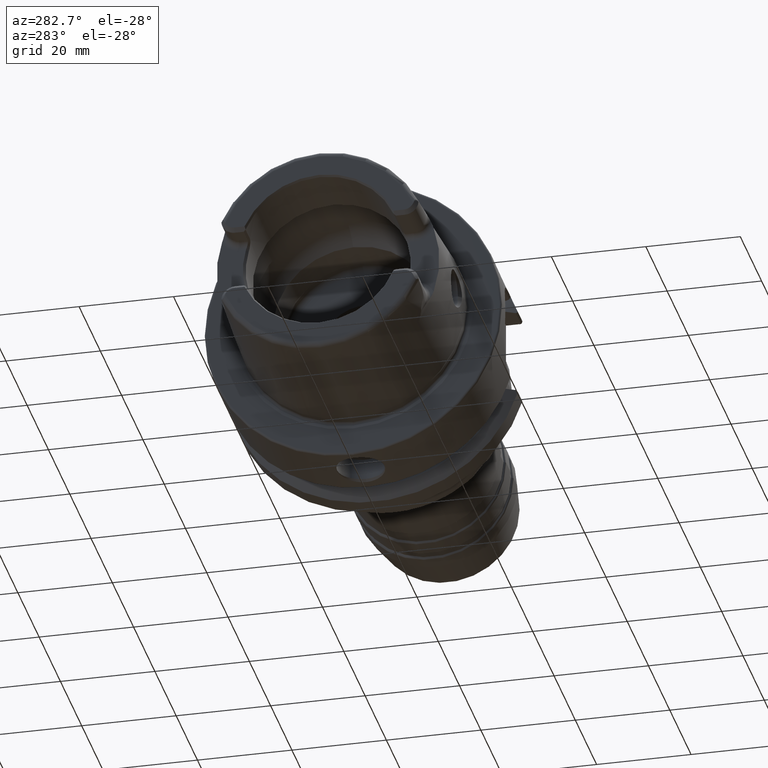
[diagram: clean part render]
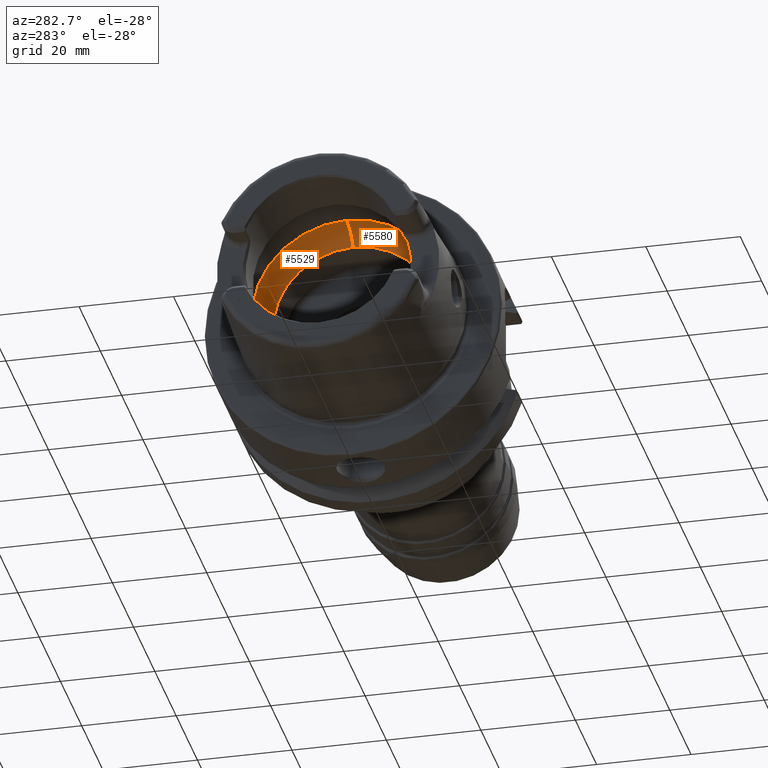
[diagram: same view with one multi-face feature highlighted, each face labeled with its STEP entity id]
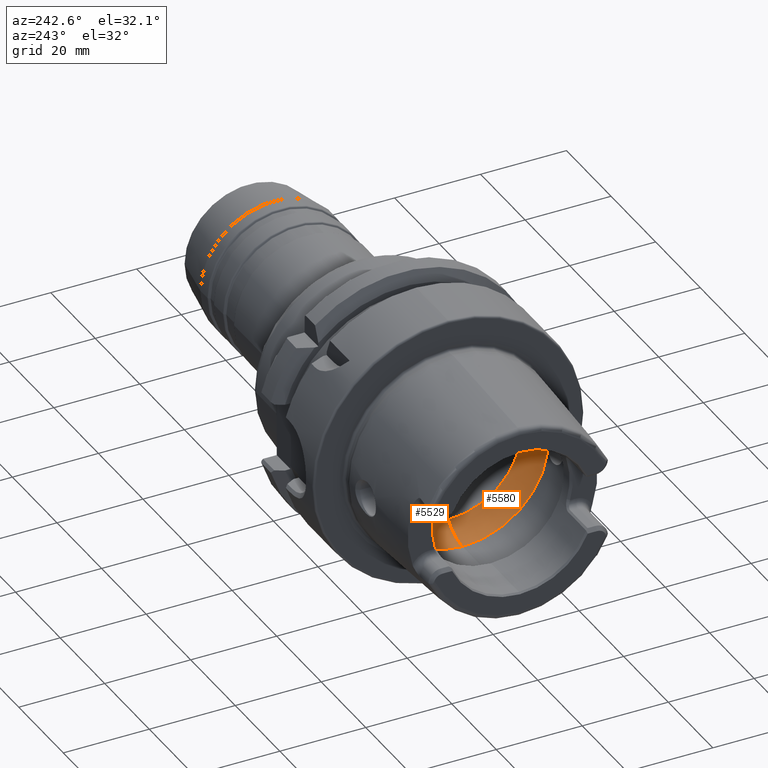
[diagram: same view with one multi-face feature highlighted, each face labeled with its STEP entity id]
A machine part, auxiliary view. The highlighted faces form ONE feature: a constant-radius fillet chain: 2 tangent blend faces with common blend radius 8.2014 mm. The faces share edges in the B-rep.
A second angle (auxiliary view) of the same feature is appended — it is thin or edge-on in the first view.
Their STEP definitions:
[1] entity #5580 (Torus):
#194=CARTESIAN_POINT('',(9.100685570619E-2,0.E0,0.E0));
#195=DIRECTION('',(1.E0,0.E0,0.E0));
#196=DIRECTION('',(0.E0,0.E0,1.E0));
#197=AXIS2_PLACEMENT_3D('',#194,#195,#196);
#1860=CARTESIAN_POINT('',(-6.25E0,-1.983683432405E1,-2.549509756796E0));
#1862=CARTESIAN_POINT('',(-6.25E0,-1.983683432405E1,2.549509756796E0));
#1878=CARTESIAN_POINT('',(-6.25E0,0.E0,0.E0));
#1879=DIRECTION('',(1.E0,0.E0,0.E0));
#1880=DIRECTION('',(0.E0,0.E0,1.E0));
#1881=AXIS2_PLACEMENT_3D('',#1878,#1879,#1880);
#1891=CARTESIAN_POINT('',(-6.25E0,0.E0,0.E0));
#1892=DIRECTION('',(1.E0,0.E0,0.E0));
#1893=DIRECTION('',(0.E0,-9.918417211620E-1,-1.274754884772E-1));
#1894=AXIS2_PLACEMENT_3D('',#1891,#1892,#1893);
#1896=CARTESIAN_POINT('',(-6.25E0,-1.983683432405E1,-2.549509756796E0));
#1897=CARTESIAN_POINT('',(-6.101093125602E0,-1.985747743161E1,
-2.388893032933E0));
#1898=CARTESIAN_POINT('',(-5.822659818223E0,-1.989115596372E1,
-2.033111062752E0));
#1899=CARTESIAN_POINT('',(-5.488201228317E0,-1.992205327237E1,
-1.382880153167E0));
#1900=CARTESIAN_POINT('',(-5.289436797514E0,-1.993633205836E1,
-6.798605472504E-1));
#1901=CARTESIAN_POINT('',(-5.25E0,-1.993880636712E1,-2.233479842101E-1));
#1902=CARTESIAN_POINT('',(-5.25E0,-1.993880636712E1,0.E0));
#1904=CARTESIAN_POINT('',(-6.25E0,0.E0,-1.179860506927E1));
#1905=DIRECTION('',(0.E0,1.E0,0.E0));
#1906=DIRECTION('',(7.731620031199E-1,0.E0,-6.342085752586E-1));
#1907=AXIS2_PLACEMENT_3D('',#1904,#1905,#1906);
#1909=CARTESIAN_POINT('',(-6.25E0,0.E0,1.179860506927E1));
#1910=DIRECTION('',(0.E0,-1.E0,0.E0));
#1911=DIRECTION('',(7.731620031199E-1,0.E0,6.342085752586E-1));
#1912=AXIS2_PLACEMENT_3D('',#1909,#1910,#1911);
#1914=CARTESIAN_POINT('',(-5.25E0,-1.993880636712E1,0.E0));
#1915=CARTESIAN_POINT('',(-5.25E0,-1.993880636712E1,2.264970239429E-1));
#1916=CARTESIAN_POINT('',(-5.290695460968E0,-1.993625219118E1,
6.872326344748E-1));
#1917=CARTESIAN_POINT('',(-5.490377201863E0,-1.992187274641E1,
1.387731634625E0));
#1918=CARTESIAN_POINT('',(-5.823918076940E0,-1.989100952366E1,
2.034769201773E0));
#1919=CARTESIAN_POINT('',(-6.101533969503E0,-1.985741631699E1,
2.389368544245E0));
#1920=CARTESIAN_POINT('',(-6.25E0,-1.983683432405E1,2.549509756796E0));
#2824=CARTESIAN_POINT('',(9.100685570619E-2,0.E0,-1.7E1));
#2825=CARTESIAN_POINT('',(9.100685570619E-2,0.E0,1.7E1));
#2826=VERTEX_POINT('',#2824);
#2827=VERTEX_POINT('',#2825);
#2828=CARTESIAN_POINT('',(-6.25E0,0.E0,-1.99999999E1));
#2829=VERTEX_POINT('',#2828);
#2830=CARTESIAN_POINT('',(-6.25E0,0.E0,1.99999999E1));
#2831=VERTEX_POINT('',#2830);
#3103=VERTEX_POINT('',#1860);
#3104=VERTEX_POINT('',#1862);
#3106=VERTEX_POINT('',#1902);
#5566=CARTESIAN_POINT('',(-6.25E0,0.E0,0.E0));
#5567=DIRECTION('',(1.E0,0.E0,0.E0));
#5568=DIRECTION('',(0.E0,0.E0,1.E0));
#5569=AXIS2_PLACEMENT_3D('',#5566,#5567,#5568);
#5570=TOROIDAL_SURFACE('',#5569,1.179860506927E1,8.201394830732E0);
#5571=ORIENTED_EDGE('',*,*,#5505,.F.);
#5572=ORIENTED_EDGE('',*,*,#5561,.T.);
#5573=ORIENTED_EDGE('',*,*,#5523,.F.);
#5574=ORIENTED_EDGE('',*,*,#3511,.F.);
#5575=ORIENTED_EDGE('',*,*,#5520,.T.);
#5576=ORIENTED_EDGE('',*,*,#5555,.T.);
#5577=ORIENTED_EDGE('',*,*,#5445,.F.);
#5578=EDGE_LOOP('',(#5571,#5572,#5573,#5574,#5575,#5576,#5577));
#5579=FACE_OUTER_BOUND('',#5578,.F.);
#5580=ADVANCED_FACE('',(#5579),#5570,.F.);
#198=CIRCLE('',#197,1.7E1);
#1882=CIRCLE('',#1881,1.99999999E1);
#1895=CIRCLE('',#1894,1.99999999E1);
#1903=B_SPLINE_CURVE_WITH_KNOTS('',3,(#1896,#1897,#1898,#1899,#1900,#1901,
#1902),.UNSPECIFIED.,.F.,.F.,(4,1,1,1,4),(0.E0,2.5E-1,5.E-1,7.5E-1,1.E0),
.UNSPECIFIED.);
#1908=CIRCLE('',#1907,8.201394830732E0);
#1913=CIRCLE('',#1912,8.201394830732E0);
#1921=B_SPLINE_CURVE_WITH_KNOTS('',3,(#1914,#1915,#1916,#1917,#1918,#1919,
#1920),.UNSPECIFIED.,.F.,.F.,(4,1,1,1,4),(0.E0,2.5E-1,5.E-1,7.5E-1,1.E0),
.UNSPECIFIED.);
#3511=EDGE_CURVE('',#2827,#2826,#198,.T.);
#5445=EDGE_CURVE('',#3106,#3104,#1921,.T.);
#5505=EDGE_CURVE('',#3103,#3106,#1903,.T.);
#5520=EDGE_CURVE('',#2827,#2831,#1913,.T.);
#5523=EDGE_CURVE('',#2826,#2829,#1908,.T.);
#5555=EDGE_CURVE('',#2831,#3104,#1882,.T.);
#5561=EDGE_CURVE('',#3103,#2829,#1895,.T.);
[2] entity #5529 (Torus):
#123=CARTESIAN_POINT('',(9.100685570619E-2,0.E0,0.E0));
#124=DIRECTION('',(1.E0,0.E0,0.E0));
#125=DIRECTION('',(0.E0,0.E0,-1.E0));
#126=AXIS2_PLACEMENT_3D('',#123,#124,#125);
#1788=CARTESIAN_POINT('',(-5.25E0,1.993880636712E1,0.E0));
#1789=CARTESIAN_POINT('',(-5.25E0,1.993880636712E1,-2.233479842101E-1));
#1790=CARTESIAN_POINT('',(-5.289436797514E0,1.993633205836E1,
-6.798605472504E-1));
#1791=CARTESIAN_POINT('',(-5.488201228317E0,1.992205327237E1,
-1.382880153167E0));
#1792=CARTESIAN_POINT('',(-5.822659818223E0,1.989115596372E1,
-2.033111062752E0));
#1793=CARTESIAN_POINT('',(-6.101093125602E0,1.985747743161E1,
-2.388893032933E0));
#1794=CARTESIAN_POINT('',(-6.25E0,1.983683432405E1,-2.549509756796E0));
#1796=CARTESIAN_POINT('',(-6.25E0,1.983683432405E1,2.549509756796E0));
#1797=CARTESIAN_POINT('',(-6.101533969503E0,1.985741631699E1,2.389368544245E0));
#1798=CARTESIAN_POINT('',(-5.823918076940E0,1.989100952366E1,2.034769201773E0));
#1799=CARTESIAN_POINT('',(-5.490377201863E0,1.992187274641E1,1.387731634625E0));
#1800=CARTESIAN_POINT('',(-5.290695460968E0,1.993625219118E1,
6.872326344748E-1));
#1801=CARTESIAN_POINT('',(-5.25E0,1.993880636712E1,2.264970239429E-1));
#1802=CARTESIAN_POINT('',(-5.25E0,1.993880636712E1,0.E0));
#1804=CARTESIAN_POINT('',(-6.25E0,1.983683432405E1,-2.549509756796E0));
#1820=CARTESIAN_POINT('',(-6.25E0,0.E0,0.E0));
#1821=DIRECTION('',(1.E0,0.E0,0.E0));
#1822=DIRECTION('',(0.E0,0.E0,-1.E0));
#1823=AXIS2_PLACEMENT_3D('',#1820,#1821,#1822);
#1825=CARTESIAN_POINT('',(-6.25E0,0.E0,0.E0));
#1826=DIRECTION('',(1.E0,0.E0,0.E0));
#1827=DIRECTION('',(0.E0,9.918417211620E-1,1.274754884772E-1));
#1828=AXIS2_PLACEMENT_3D('',#1825,#1826,#1827);
#1844=CARTESIAN_POINT('',(-6.25E0,1.983683432405E1,2.549509756796E0));
#1904=CARTESIAN_POINT('',(-6.25E0,0.E0,-1.179860506927E1));
#1905=DIRECTION('',(0.E0,1.E0,0.E0));
#1906=DIRECTION('',(7.731620031199E-1,0.E0,-6.342085752586E-1));
#1907=AXIS2_PLACEMENT_3D('',#1904,#1905,#1906);
#1909=CARTESIAN_POINT('',(-6.25E0,0.E0,1.179860506927E1));
#1910=DIRECTION('',(0.E0,-1.E0,0.E0));
#1911=DIRECTION('',(7.731620031199E-1,0.E0,6.342085752586E-1));
#1912=AXIS2_PLACEMENT_3D('',#1909,#1910,#1911);
#2824=CARTESIAN_POINT('',(9.100685570619E-2,0.E0,-1.7E1));
#2825=CARTESIAN_POINT('',(9.100685570619E-2,0.E0,1.7E1));
#2826=VERTEX_POINT('',#2824);
#2827=VERTEX_POINT('',#2825);
#2828=CARTESIAN_POINT('',(-6.25E0,0.E0,-1.99999999E1));
#2829=VERTEX_POINT('',#2828);
#2830=CARTESIAN_POINT('',(-6.25E0,0.E0,1.99999999E1));
#2831=VERTEX_POINT('',#2830);
#3099=VERTEX_POINT('',#1804);
#3101=VERTEX_POINT('',#1844);
#3105=VERTEX_POINT('',#1788);
#5511=CARTESIAN_POINT('',(-6.25E0,0.E0,0.E0));
#5512=DIRECTION('',(1.E0,0.E0,0.E0));
#5513=DIRECTION('',(0.E0,0.E0,1.E0));
#5514=AXIS2_PLACEMENT_3D('',#5511,#5512,#5513);
#5515=TOROIDAL_SURFACE('',#5514,1.179860506927E1,8.201394830732E0);
#5516=ORIENTED_EDGE('',*,*,#5488,.F.);
#5517=ORIENTED_EDGE('',*,*,#5430,.F.);
#5519=ORIENTED_EDGE('',*,*,#5518,.T.);
#5521=ORIENTED_EDGE('',*,*,#5520,.F.);
#5522=ORIENTED_EDGE('',*,*,#3466,.F.);
#5524=ORIENTED_EDGE('',*,*,#5523,.T.);
#5526=ORIENTED_EDGE('',*,*,#5525,.T.);
#5527=EDGE_LOOP('',(#5516,#5517,#5519,#5521,#5522,#5524,#5526));
#5528=FACE_OUTER_BOUND('',#5527,.F.);
#5529=ADVANCED_FACE('',(#5528),#5515,.F.);
#127=CIRCLE('',#126,1.7E1);
#1795=B_SPLINE_CURVE_WITH_KNOTS('',3,(#1788,#1789,#1790,#1791,#1792,#1793,
#1794),.UNSPECIFIED.,.F.,.F.,(4,1,1,1,4),(0.E0,2.5E-1,5.E-1,7.5E-1,1.E0),
.UNSPECIFIED.);
#1803=B_SPLINE_CURVE_WITH_KNOTS('',3,(#1796,#1797,#1798,#1799,#1800,#1801,
#1802),.UNSPECIFIED.,.F.,.F.,(4,1,1,1,4),(0.E0,2.5E-1,5.E-1,7.5E-1,1.E0),
.UNSPECIFIED.);
#1824=CIRCLE('',#1823,1.99999999E1);
#1829=CIRCLE('',#1828,1.99999999E1);
#1908=CIRCLE('',#1907,8.201394830732E0);
#1913=CIRCLE('',#1912,8.201394830732E0);
#3466=EDGE_CURVE('',#2826,#2827,#127,.T.);
#5430=EDGE_CURVE('',#3101,#3105,#1803,.T.);
#5488=EDGE_CURVE('',#3105,#3099,#1795,.T.);
#5518=EDGE_CURVE('',#3101,#2831,#1829,.T.);
#5520=EDGE_CURVE('',#2827,#2831,#1913,.T.);
#5523=EDGE_CURVE('',#2826,#2829,#1908,.T.);
#5525=EDGE_CURVE('',#2829,#3099,#1824,.T.);